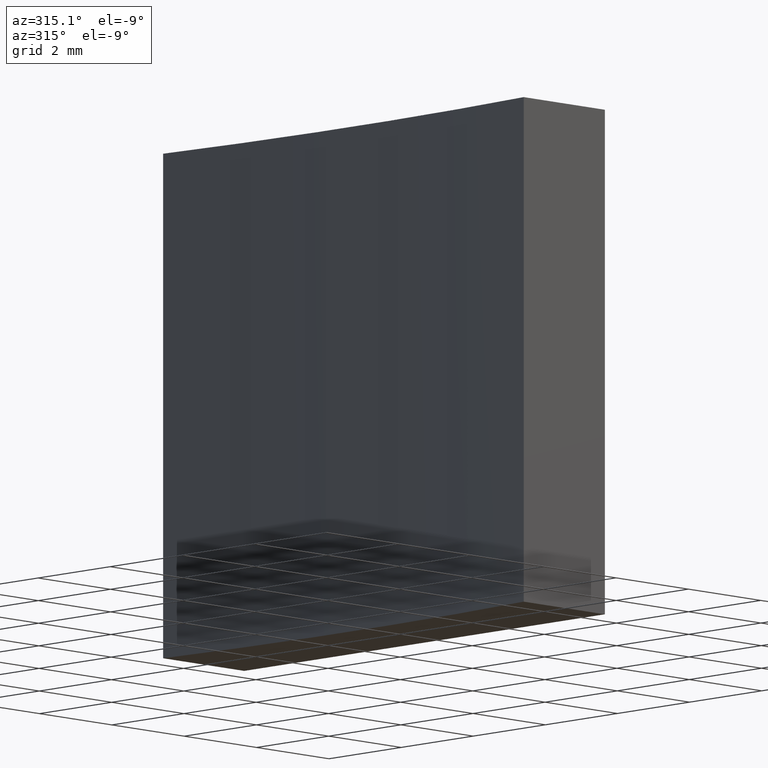
[diagram: clean part render]
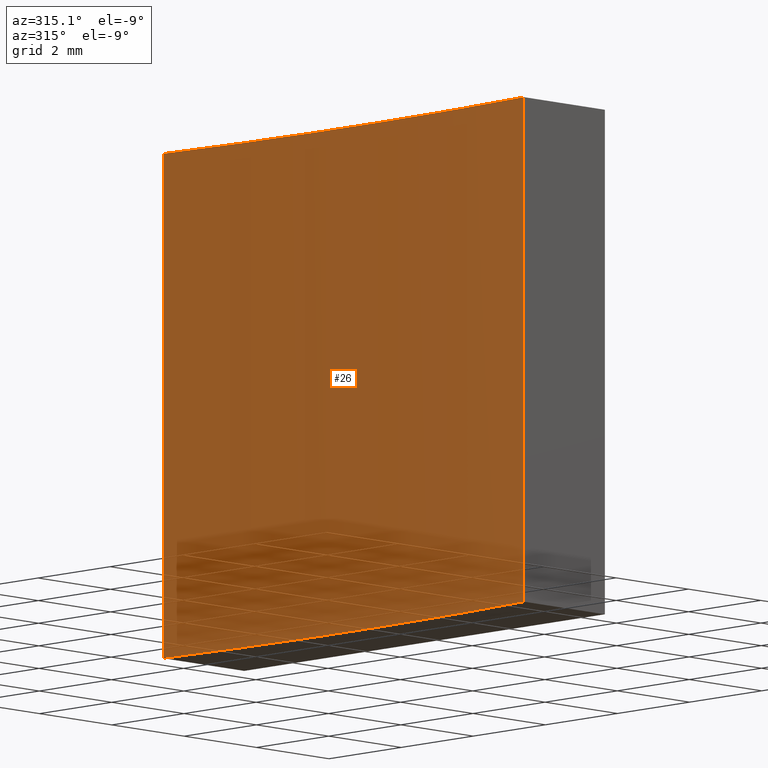
[diagram: same view with one face highlighted and labeled with its STEP entity id]
A machine part, auxiliary view. The second image highlights one B-rep face of the part: STEP entity #26.
In plain terms, the highlighted cylindrical surface (partial cylindrical patch) has radius 51.64 mm, axis along (-0, -0, -1).
Its self-contained STEP definition (entity closure, byte-faithful):
#2 = VECTOR ( 'NONE', #176, 1000.000000000000000 ) ;
#8 = DIRECTION ( 'NONE',  ( 1.000000000000000000, 0.000000000000000000, 0.000000000000000000 ) ) ;
#12 = CYLINDRICAL_SURFACE ( 'NONE', #218, 51.64000000000000057 ) ;
#15 = EDGE_CURVE ( 'NONE', #230, #133, #196, .T. ) ;
#18 = FACE_OUTER_BOUND ( 'NONE', #70, .T. ) ;
#23 = AXIS2_PLACEMENT_3D ( 'NONE', #191, #228, #31 ) ;
#26 = ADVANCED_FACE ( 'NONE', ( #18 ), #12, .F. ) ;
#31 = DIRECTION ( 'NONE',  ( 1.000000000000000000, 0.000000000000000000, 0.000000000000000000 ) ) ;
#32 = DIRECTION ( 'NONE',  ( -0.000000000000000000, -0.000000000000000000, -1.000000000000000000 ) ) ;
#35 = EDGE_CURVE ( 'NONE', #140, #215, #98, .T. ) ;
#38 = CARTESIAN_POINT ( 'NONE',  ( 19.78284995870107466, -19.65169026847826927, 10.00000000000000000 ) ) ;
#53 = CARTESIAN_POINT ( 'NONE',  ( 19.78284995870107466, -9.651690268478269275, 10.00000000000000000 ) ) ;
#55 = DIRECTION ( 'NONE',  ( -0.000000000000000000, -0.000000000000000000, -1.000000000000000000 ) ) ;
#57 = ORIENTED_EDGE ( 'NONE', *, *, #15, .F. ) ;
#70 = EDGE_LOOP ( 'NONE', ( #74, #57, #160, #190 ) ) ;
#74 = ORIENTED_EDGE ( 'NONE', *, *, #143, .T. ) ;
#94 = CIRCLE ( 'NONE', #23, 51.64000000000000057 ) ;
#97 = CARTESIAN_POINT ( 'NONE',  ( 19.78284995870107466, -19.65169026847826927, 10.00000000000000000 ) ) ;
#98 = LINE ( 'NONE', #159, #119 ) ;
#116 = CARTESIAN_POINT ( 'NONE',  ( 19.78284995870107466, -19.65169026847826927, 0.000000000000000000 ) ) ;
#119 = VECTOR ( 'NONE', #231, 1000.000000000000000 ) ;
#131 = CARTESIAN_POINT ( 'NONE',  ( 19.78284995870107466, -9.651690268478269275, 0.000000000000000000 ) ) ;
#133 = VERTEX_POINT ( 'NONE', #116 ) ;
#139 = CARTESIAN_POINT ( 'NONE',  ( -31.61451962379798530, -14.65169026847826927, 10.00000000000000000 ) ) ;
#140 = VERTEX_POINT ( 'NONE', #53 ) ;
#143 = EDGE_CURVE ( 'NONE', #215, #133, #94, .T. ) ;
#151 = CIRCLE ( 'NONE', #175, 51.64000000000000057 ) ;
#159 = CARTESIAN_POINT ( 'NONE',  ( 19.78284995870107466, -9.651690268478269275, 10.00000000000000000 ) ) ;
#160 = ORIENTED_EDGE ( 'NONE', *, *, #166, .F. ) ;
#166 = EDGE_CURVE ( 'NONE', #140, #230, #151, .T. ) ;
#175 = AXIS2_PLACEMENT_3D ( 'NONE', #209, #55, #8 ) ;
#176 = DIRECTION ( 'NONE',  ( -0.000000000000000000, -0.000000000000000000, -1.000000000000000000 ) ) ;
#190 = ORIENTED_EDGE ( 'NONE', *, *, #35, .T. ) ;
#191 = CARTESIAN_POINT ( 'NONE',  ( -31.61451962379798530, -14.65169026847826927, 0.000000000000000000 ) ) ;
#196 = LINE ( 'NONE', #38, #2 ) ;
#209 = CARTESIAN_POINT ( 'NONE',  ( -31.61451962379798530, -14.65169026847826927, 10.00000000000000000 ) ) ;
#215 = VERTEX_POINT ( 'NONE', #131 ) ;
#218 = AXIS2_PLACEMENT_3D ( 'NONE', #139, #32, #229 ) ;
#228 = DIRECTION ( 'NONE',  ( -0.000000000000000000, -0.000000000000000000, -1.000000000000000000 ) ) ;
#229 = DIRECTION ( 'NONE',  ( -1.000000000000000000, 0.000000000000000000, 0.000000000000000000 ) ) ;
#230 = VERTEX_POINT ( 'NONE', #97 ) ;
#231 = DIRECTION ( 'NONE',  ( -0.000000000000000000, -0.000000000000000000, -1.000000000000000000 ) ) ;